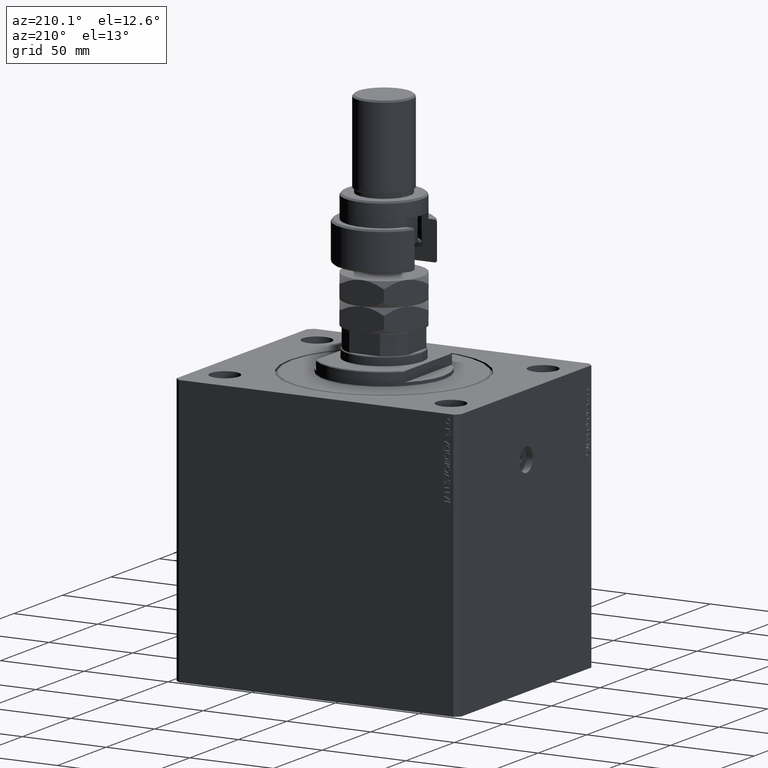
[diagram: clean part render]
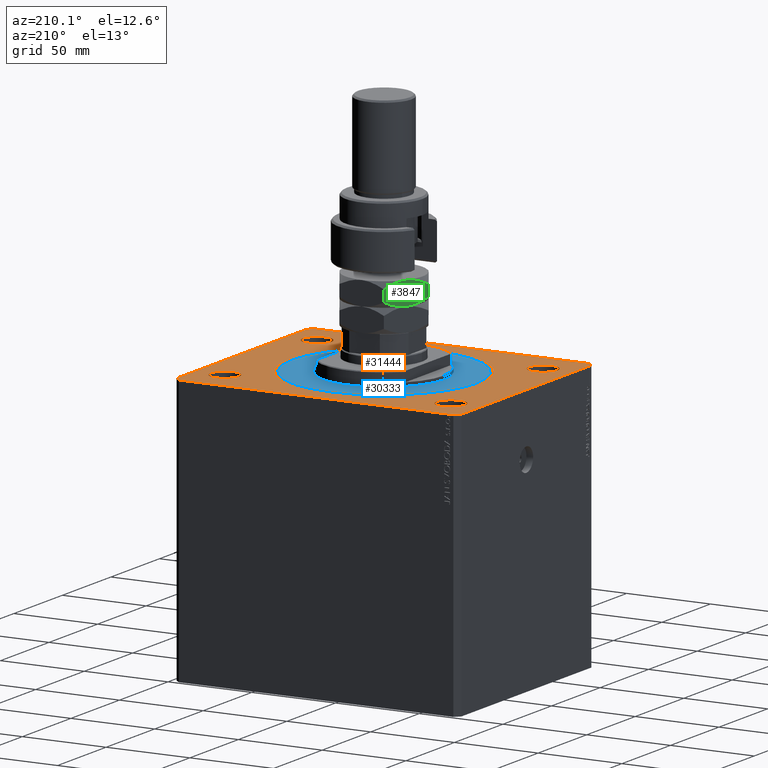
[diagram: same view with three faces highlighted in distinct colors, each labeled with its STEP entity id]
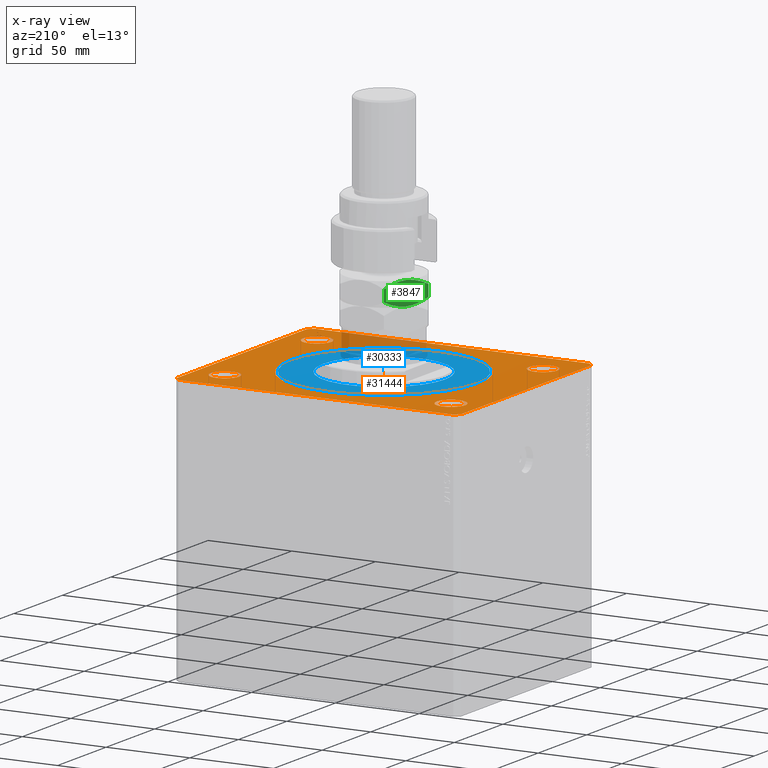
[diagram: x-ray of the same camera — body ghosted, the three highlighted faces saturated]
A machine part, auxiliary view with three faces highlighted in distinct colors.
The next image is the same camera in x-ray (body ghosted, the three faces saturated) — at least one of them is partly hidden behind the body in this view.
Their STEP definitions:

[orange] entity #31444 — the highlighted planar face has unit normal (0, 0, 1).
#66 = CARTESIAN_POINT ( 'NONE',  ( 59.00000000000000000, -47.50000000000001421, 0.000000000000000000 ) ) ;
#152 = VECTOR ( 'NONE', #17586, 1000.000000000000114 ) ;
#232 = DIRECTION ( 'NONE',  ( 0.000000000000000000, 0.000000000000000000, 1.000000000000000000 ) ) ;
#339 = DIRECTION ( 'NONE',  ( 0.7071067811865474617, -0.7071067811865474617, 0.000000000000000000 ) ) ;
#359 = CIRCLE ( 'NONE', #9518, 8.499999999999992895 ) ;
#422 = FACE_OUTER_BOUND ( 'NONE', #38040, .T. ) ;
#856 = DIRECTION ( 'NONE',  ( 1.000000000000000000, 0.000000000000000000, 0.000000000000000000 ) ) ;
#1150 = VERTEX_POINT ( 'NONE', #41663 ) ;
#1504 = CARTESIAN_POINT ( 'NONE',  ( 0.000000000000000000, 0.000000000000000000, 0.000000000000000000 ) ) ;
#1679 = LINE ( 'NONE', #30053, #14135 ) ;
#1809 = DIRECTION ( 'NONE',  ( 1.000000000000000000, 0.000000000000000000, 0.000000000000000000 ) ) ;
#1843 = ORIENTED_EDGE ( 'NONE', *, *, #41476, .T. ) ;
#1967 = DIRECTION ( 'NONE',  ( 0.000000000000000000, 0.000000000000000000, 1.000000000000000000 ) ) ;
#2718 = EDGE_CURVE ( 'NONE', #18835, #39167, #28983, .T. ) ;
#2809 = LINE ( 'NONE', #14094, #33212 ) ;
#2948 = CARTESIAN_POINT ( 'NONE',  ( 82.00000000000001421, -70.00000000000000000, 0.000000000000000000 ) ) ;
#3319 = EDGE_CURVE ( 'NONE', #45254, #24000, #23534, .T. ) ;
#4534 = AXIS2_PLACEMENT_3D ( 'NONE', #29483, #14112, #39810 ) ;
#5463 = CARTESIAN_POINT ( 'NONE',  ( 59.00000000000000000, 47.49999999999999289, 0.000000000000000000 ) ) ;
#5775 = EDGE_LOOP ( 'NONE', ( #29635, #27258 ) ) ;
#5882 = EDGE_CURVE ( 'NONE', #39167, #18835, #23679, .T. ) ;
#6448 = DIRECTION ( 'NONE',  ( -0.7071067811865507924, -0.7071067811865441310, 0.000000000000000000 ) ) ;
#7303 = CARTESIAN_POINT ( 'NONE',  ( 67.50000000000000000, 47.49999999999999289, 0.000000000000000000 ) ) ;
#7456 = EDGE_CURVE ( 'NONE', #21469, #40308, #20679, .T. ) ;
#8411 = EDGE_CURVE ( 'NONE', #33412, #31348, #34493, .T. ) ;
#8479 = DIRECTION ( 'NONE',  ( 1.000000000000000000, 0.000000000000000000, 0.000000000000000000 ) ) ;
#8973 = DIRECTION ( 'NONE',  ( 0.000000000000000000, 0.000000000000000000, 1.000000000000000000 ) ) ;
#9005 = DIRECTION ( 'NONE',  ( 0.000000000000000000, 0.000000000000000000, 1.000000000000000000 ) ) ;
#9354 = EDGE_CURVE ( 'NONE', #44388, #32621, #21507, .T. ) ;
#9518 = AXIS2_PLACEMENT_3D ( 'NONE', #42574, #24789, #39451 ) ;
#9804 = CARTESIAN_POINT ( 'NONE',  ( -82.00000000000000000, 70.00000000000000000, 0.000000000000000000 ) ) ;
#9985 = EDGE_LOOP ( 'NONE', ( #34518, #45412 ) ) ;
#10189 = ORIENTED_EDGE ( 'NONE', *, *, #3319, .T. ) ;
#10327 = ORIENTED_EDGE ( 'NONE', *, *, #43804, .F. ) ;
#10337 = VERTEX_POINT ( 'NONE', #19117 ) ;
#10406 = LINE ( 'NONE', #21455, #34111 ) ;
#10807 = EDGE_LOOP ( 'NONE', ( #23780, #21565 ) ) ;
#10915 = EDGE_CURVE ( 'NONE', #23577, #1150, #16933, .T. ) ;
#11351 = ORIENTED_EDGE ( 'NONE', *, *, #10915, .F. ) ;
#11466 = DIRECTION ( 'NONE',  ( 0.000000000000000000, 0.000000000000000000, 1.000000000000000000 ) ) ;
#11534 = CARTESIAN_POINT ( 'NONE',  ( 85.00000000000001421, -67.00000000000000000, 0.000000000000000000 ) ) ;
#11704 = FACE_BOUND ( 'NONE', #5775, .T. ) ;
#12755 = DIRECTION ( 'NONE',  ( 0.000000000000000000, 0.000000000000000000, 1.000000000000000000 ) ) ;
#13510 = CARTESIAN_POINT ( 'NONE',  ( 85.00000000000052580, 66.99999999999995737, 0.000000000000000000 ) ) ;
#14047 = CARTESIAN_POINT ( 'NONE',  ( 82.00000000000056843, 70.00000000000000000, 0.000000000000000000 ) ) ;
#14094 = CARTESIAN_POINT ( 'NONE',  ( 82.00000000000056843, 70.00000000000000000, 0.000000000000000000 ) ) ;
#14112 = DIRECTION ( 'NONE',  ( 0.000000000000000000, 0.000000000000000000, 1.000000000000000000 ) ) ;
#14135 = VECTOR ( 'NONE', #26433, 1000.000000000000000 ) ;
#14659 = AXIS2_PLACEMENT_3D ( 'NONE', #36975, #232, #32665 ) ;
#14984 = CARTESIAN_POINT ( 'NONE',  ( -85.00000000000000000, -67.00000000000000000, 0.000000000000000000 ) ) ;
#15275 = ORIENTED_EDGE ( 'NONE', *, *, #29829, .F. ) ;
#15419 = ORIENTED_EDGE ( 'NONE', *, *, #38932, .T. ) ;
#15944 = CARTESIAN_POINT ( 'NONE',  ( -76.00000000000000000, 47.50000000000000000, 0.000000000000000000 ) ) ;
#15951 = CARTESIAN_POINT ( 'NONE',  ( 0.000000000000000000, 0.000000000000000000, 0.000000000000000000 ) ) ;
#15999 = FACE_BOUND ( 'NONE', #10807, .T. ) ;
#16118 = DIRECTION ( 'NONE',  ( 1.000000000000000000, 0.000000000000000000, 0.000000000000000000 ) ) ;
#16431 = CARTESIAN_POINT ( 'NONE',  ( -67.50000000000000000, 47.50000000000000000, 0.000000000000000000 ) ) ;
#16933 = CIRCLE ( 'NONE', #14659, 8.500000000000007105 ) ;
#17586 = DIRECTION ( 'NONE',  ( 0.7071067811865474617, 0.7071067811865474617, 0.000000000000000000 ) ) ;
#18835 = VERTEX_POINT ( 'NONE', #66 ) ;
#18884 = EDGE_CURVE ( 'NONE', #38866, #46447, #35839, .T. ) ;
#19117 = CARTESIAN_POINT ( 'NONE',  ( -82.00000000000000000, -70.00000000000000000, 0.000000000000000000 ) ) ;
#19243 = DIRECTION ( 'NONE',  ( -0.7071067811865361374, 0.7071067811865588970, 0.000000000000000000 ) ) ;
#20679 = CIRCLE ( 'NONE', #47539, 8.499999999999992895 ) ;
#20898 = EDGE_LOOP ( 'NONE', ( #10327, #11351 ) ) ;
#21257 = EDGE_CURVE ( 'NONE', #24000, #29445, #2809, .T. ) ;
#21423 = CARTESIAN_POINT ( 'NONE',  ( -59.00000000000001421, 47.50000000000000000, 0.000000000000000000 ) ) ;
#21455 = CARTESIAN_POINT ( 'NONE',  ( -82.00000000000000000, -70.00000000000000000, 0.000000000000000000 ) ) ;
#21469 = VERTEX_POINT ( 'NONE', #21423 ) ;
#21507 = CIRCLE ( 'NONE', #22266, 56.50000000000000711 ) ;
#21565 = ORIENTED_EDGE ( 'NONE', *, *, #8411, .F. ) ;
#21764 = ORIENTED_EDGE ( 'NONE', *, *, #9354, .F. ) ;
#21945 = DIRECTION ( 'NONE',  ( 0.000000000000000000, 0.000000000000000000, 1.000000000000000000 ) ) ;
#21959 = AXIS2_PLACEMENT_3D ( 'NONE', #15951, #8973, #23616 ) ;
#22232 = AXIS2_PLACEMENT_3D ( 'NONE', #43443, #30160, #856 ) ;
#22266 = AXIS2_PLACEMENT_3D ( 'NONE', #1504, #1967, #8479 ) ;
#23329 = ORIENTED_EDGE ( 'NONE', *, *, #21257, .T. ) ;
#23391 = DIRECTION ( 'NONE',  ( 1.000000000000000000, 0.000000000000000000, 0.000000000000000000 ) ) ;
#23534 = LINE ( 'NONE', #38190, #28950 ) ;
#23558 = AXIS2_PLACEMENT_3D ( 'NONE', #31245, #12755, #16118 ) ;
#23577 = VERTEX_POINT ( 'NONE', #5463 ) ;
#23593 = VECTOR ( 'NONE', #6448, 1000.000000000000114 ) ;
#23616 = DIRECTION ( 'NONE',  ( 1.000000000000000000, 0.000000000000000000, 0.000000000000000000 ) ) ;
#23647 = CARTESIAN_POINT ( 'NONE',  ( 67.49999999999998579, -47.50000000000001421, 0.000000000000000000 ) ) ;
#23679 = CIRCLE ( 'NONE', #4534, 8.499999999999992895 ) ;
#23780 = ORIENTED_EDGE ( 'NONE', *, *, #39845, .F. ) ;
#24000 = VERTEX_POINT ( 'NONE', #14047 ) ;
#24321 = EDGE_CURVE ( 'NONE', #40308, #21469, #359, .T. ) ;
#24735 = CARTESIAN_POINT ( 'NONE',  ( -85.00000000000000000, -67.00000000000000000, 0.000000000000000000 ) ) ;
#24789 = DIRECTION ( 'NONE',  ( 0.000000000000000000, 0.000000000000000000, 1.000000000000000000 ) ) ;
#26268 = LINE ( 'NONE', #14984, #39793 ) ;
#26345 = FACE_BOUND ( 'NONE', #20898, .T. ) ;
#26433 = DIRECTION ( 'NONE',  ( 1.035655806553317576E-16, -1.000000000000000000, 0.000000000000000000 ) ) ;
#27258 = ORIENTED_EDGE ( 'NONE', *, *, #2718, .F. ) ;
#27667 = ORIENTED_EDGE ( 'NONE', *, *, #43785, .T. ) ;
#28280 = CARTESIAN_POINT ( 'NONE',  ( 85.00000000000001421, -67.00000000000000000, 0.000000000000000000 ) ) ;
#28783 = LINE ( 'NONE', #9804, #23593 ) ;
#28950 = VECTOR ( 'NONE', #19243, 1000.000000000000114 ) ;
#28983 = CIRCLE ( 'NONE', #45061, 8.499999999999992895 ) ;
#29215 = ORIENTED_EDGE ( 'NONE', *, *, #18884, .T. ) ;
#29445 = VERTEX_POINT ( 'NONE', #40548 ) ;
#29483 = CARTESIAN_POINT ( 'NONE',  ( 67.49999999999998579, -47.50000000000001421, 0.000000000000000000 ) ) ;
#29635 = ORIENTED_EDGE ( 'NONE', *, *, #5882, .F. ) ;
#29829 = EDGE_CURVE ( 'NONE', #32621, #44388, #33484, .T. ) ;
#29960 = FACE_BOUND ( 'NONE', #43032, .T. ) ;
#30053 = CARTESIAN_POINT ( 'NONE',  ( -85.00000000000001421, 67.00000000000001421, 0.000000000000000000 ) ) ;
#30160 = DIRECTION ( 'NONE',  ( 0.000000000000000000, 0.000000000000000000, 1.000000000000000000 ) ) ;
#31013 = EDGE_CURVE ( 'NONE', #10337, #38866, #10406, .T. ) ;
#31245 = CARTESIAN_POINT ( 'NONE',  ( -67.49999999999998579, -47.50000000000001421, 0.000000000000000000 ) ) ;
#31348 = VERTEX_POINT ( 'NONE', #47022 ) ;
#31357 = CARTESIAN_POINT ( 'NONE',  ( 75.99999999999998579, -47.50000000000001421, 0.000000000000000000 ) ) ;
#31370 = CARTESIAN_POINT ( 'NONE',  ( -56.50000000000000711, 6.919254415182546126E-15, 0.000000000000000000 ) ) ;
#31444 = ADVANCED_FACE ( 'NONE', ( #29960, #15999, #11704, #26345, #37390, #422 ), #33784, .T. ) ;
#32621 = VERTEX_POINT ( 'NONE', #31370 ) ;
#32665 = DIRECTION ( 'NONE',  ( 1.000000000000000000, 0.000000000000000000, 0.000000000000000000 ) ) ;
#32774 = VECTOR ( 'NONE', #42930, 1000.000000000000000 ) ;
#32956 = CARTESIAN_POINT ( 'NONE',  ( 56.50000000000000711, 0.000000000000000000, 0.000000000000000000 ) ) ;
#33212 = VECTOR ( 'NONE', #43392, 1000.000000000000000 ) ;
#33412 = VERTEX_POINT ( 'NONE', #33967 ) ;
#33484 = CIRCLE ( 'NONE', #21959, 56.50000000000000711 ) ;
#33784 = PLANE ( 'NONE',  #37177 ) ;
#33967 = CARTESIAN_POINT ( 'NONE',  ( -75.99999999999998579, -47.50000000000001421, 0.000000000000000000 ) ) ;
#34037 = EDGE_CURVE ( 'NONE', #35505, #39889, #1679, .T. ) ;
#34111 = VECTOR ( 'NONE', #36098, 1000.000000000000000 ) ;
#34493 = CIRCLE ( 'NONE', #22232, 8.499999999999992895 ) ;
#34518 = ORIENTED_EDGE ( 'NONE', *, *, #7456, .F. ) ;
#35505 = VERTEX_POINT ( 'NONE', #40994 ) ;
#35839 = LINE ( 'NONE', #2948, #152 ) ;
#36098 = DIRECTION ( 'NONE',  ( 1.000000000000000000, 0.000000000000000000, 0.000000000000000000 ) ) ;
#36595 = DIRECTION ( 'NONE',  ( 1.000000000000000000, 0.000000000000000000, 0.000000000000000000 ) ) ;
#36942 = ORIENTED_EDGE ( 'NONE', *, *, #31013, .T. ) ;
#36975 = CARTESIAN_POINT ( 'NONE',  ( 67.50000000000000000, 47.49999999999999289, 0.000000000000000000 ) ) ;
#37177 = AXIS2_PLACEMENT_3D ( 'NONE', #44374, #11466, #44836 ) ;
#37390 = FACE_BOUND ( 'NONE', #9985, .T. ) ;
#37498 = LINE ( 'NONE', #28280, #32774 ) ;
#38040 = EDGE_LOOP ( 'NONE', ( #23329, #1843, #42850, #27667, #36942, #29215, #15419, #10189 ) ) ;
#38042 = DIRECTION ( 'NONE',  ( 0.000000000000000000, 0.000000000000000000, 1.000000000000000000 ) ) ;
#38190 = CARTESIAN_POINT ( 'NONE',  ( 85.00000000000052580, 66.99999999999995737, 0.000000000000000000 ) ) ;
#38272 = CIRCLE ( 'NONE', #45927, 8.500000000000007105 ) ;
#38866 = VERTEX_POINT ( 'NONE', #44488 ) ;
#38932 = EDGE_CURVE ( 'NONE', #46447, #45254, #37498, .T. ) ;
#39167 = VERTEX_POINT ( 'NONE', #31357 ) ;
#39451 = DIRECTION ( 'NONE',  ( 1.000000000000000000, 0.000000000000000000, 0.000000000000000000 ) ) ;
#39695 = CIRCLE ( 'NONE', #23558, 8.499999999999992895 ) ;
#39793 = VECTOR ( 'NONE', #339, 1000.000000000000114 ) ;
#39810 = DIRECTION ( 'NONE',  ( 1.000000000000000000, 0.000000000000000000, 0.000000000000000000 ) ) ;
#39845 = EDGE_CURVE ( 'NONE', #31348, #33412, #39695, .T. ) ;
#39889 = VERTEX_POINT ( 'NONE', #24735 ) ;
#40308 = VERTEX_POINT ( 'NONE', #15944 ) ;
#40548 = CARTESIAN_POINT ( 'NONE',  ( -82.00000000000000000, 70.00000000000000000, 0.000000000000000000 ) ) ;
#40994 = CARTESIAN_POINT ( 'NONE',  ( -85.00000000000001421, 67.00000000000001421, 0.000000000000000000 ) ) ;
#41476 = EDGE_CURVE ( 'NONE', #29445, #35505, #28783, .T. ) ;
#41663 = CARTESIAN_POINT ( 'NONE',  ( 76.00000000000001421, 47.49999999999999289, 0.000000000000000000 ) ) ;
#42574 = CARTESIAN_POINT ( 'NONE',  ( -67.50000000000000000, 47.50000000000000000, 0.000000000000000000 ) ) ;
#42850 = ORIENTED_EDGE ( 'NONE', *, *, #34037, .T. ) ;
#42930 = DIRECTION ( 'NONE',  ( 3.728360903591945148E-15, 1.000000000000000000, 0.000000000000000000 ) ) ;
#43032 = EDGE_LOOP ( 'NONE', ( #21764, #15275 ) ) ;
#43392 = DIRECTION ( 'NONE',  ( -1.000000000000000000, 0.000000000000000000, 0.000000000000000000 ) ) ;
#43443 = CARTESIAN_POINT ( 'NONE',  ( -67.49999999999998579, -47.50000000000001421, 0.000000000000000000 ) ) ;
#43785 = EDGE_CURVE ( 'NONE', #39889, #10337, #26268, .T. ) ;
#43804 = EDGE_CURVE ( 'NONE', #1150, #23577, #38272, .T. ) ;
#44374 = CARTESIAN_POINT ( 'NONE',  ( 0.000000000000000000, 0.000000000000000000, 0.000000000000000000 ) ) ;
#44388 = VERTEX_POINT ( 'NONE', #32956 ) ;
#44488 = CARTESIAN_POINT ( 'NONE',  ( 82.00000000000001421, -70.00000000000000000, 0.000000000000000000 ) ) ;
#44836 = DIRECTION ( 'NONE',  ( 1.000000000000000000, 0.000000000000000000, -0.000000000000000000 ) ) ;
#45061 = AXIS2_PLACEMENT_3D ( 'NONE', #23647, #9005, #1809 ) ;
#45254 = VERTEX_POINT ( 'NONE', #13510 ) ;
#45412 = ORIENTED_EDGE ( 'NONE', *, *, #24321, .F. ) ;
#45927 = AXIS2_PLACEMENT_3D ( 'NONE', #7303, #21945, #36595 ) ;
#46447 = VERTEX_POINT ( 'NONE', #11534 ) ;
#47022 = CARTESIAN_POINT ( 'NONE',  ( -59.00000000000000000, -47.50000000000001421, 0.000000000000000000 ) ) ;
#47539 = AXIS2_PLACEMENT_3D ( 'NONE', #16431, #38042, #23391 ) ;

[blue] entity #30333 — the highlighted planar face has unit normal (0, 0, -1).
#1983 = CARTESIAN_POINT ( 'NONE',  ( -55.00000000000002132, 6.827405905246496343E-15, 0.000000000000000000 ) ) ;
#4105 = EDGE_LOOP ( 'NONE', ( #47425, #43416 ) ) ;
#5447 = CARTESIAN_POINT ( 'NONE',  ( 36.50000000000000000, 0.000000000000000000, -2.168404344971008868E-16 ) ) ;
#6978 = FACE_BOUND ( 'NONE', #24445, .T. ) ;
#9736 = DIRECTION ( 'NONE',  ( 1.000000000000000000, 0.000000000000000000, 0.000000000000000000 ) ) ;
#10029 = CARTESIAN_POINT ( 'NONE',  ( 0.000000000000000000, 0.000000000000000000, 0.000000000000000000 ) ) ;
#10822 = CARTESIAN_POINT ( 'NONE',  ( 0.000000000000000000, 0.000000000000000000, 0.000000000000000000 ) ) ;
#13259 = EDGE_CURVE ( 'NONE', #46856, #21154, #20062, .T. ) ;
#13346 = DIRECTION ( 'NONE',  ( -0.000000000000000000, -0.000000000000000000, -1.000000000000000000 ) ) ;
#13486 = VERTEX_POINT ( 'NONE', #1983 ) ;
#13529 = AXIS2_PLACEMENT_3D ( 'NONE', #10029, #17235, #31895 ) ;
#13955 = AXIS2_PLACEMENT_3D ( 'NONE', #41396, #15702, #37790 ) ;
#14190 = DIRECTION ( 'NONE',  ( 0.000000000000000000, 0.000000000000000000, 1.000000000000000000 ) ) ;
#14344 = VERTEX_POINT ( 'NONE', #17411 ) ;
#14432 = DIRECTION ( 'NONE',  ( 1.000000000000000000, 0.000000000000000000, -0.000000000000000000 ) ) ;
#15702 = DIRECTION ( 'NONE',  ( 0.000000000000000000, 0.000000000000000000, 1.000000000000000000 ) ) ;
#17235 = DIRECTION ( 'NONE',  ( -0.000000000000000000, -0.000000000000000000, -1.000000000000000000 ) ) ;
#17411 = CARTESIAN_POINT ( 'NONE',  ( 55.00000000000002132, 0.000000000000000000, 0.000000000000000000 ) ) ;
#18593 = EDGE_CURVE ( 'NONE', #21154, #46856, #27764, .T. ) ;
#20062 = CIRCLE ( 'NONE', #40788, 36.50000000000000000 ) ;
#21154 = VERTEX_POINT ( 'NONE', #38112 ) ;
#24445 = EDGE_LOOP ( 'NONE', ( #47183, #26638 ) ) ;
#25469 = FACE_OUTER_BOUND ( 'NONE', #4105, .T. ) ;
#26638 = ORIENTED_EDGE ( 'NONE', *, *, #18593, .T. ) ;
#27764 = CIRCLE ( 'NONE', #13955, 36.50000000000000000 ) ;
#28854 = EDGE_CURVE ( 'NONE', #13486, #14344, #35834, .T. ) ;
#28987 = DIRECTION ( 'NONE',  ( 0.000000000000000000, 0.000000000000000000, 1.000000000000000000 ) ) ;
#29232 = DIRECTION ( 'NONE',  ( 1.000000000000000000, 0.000000000000000000, 0.000000000000000000 ) ) ;
#29321 = PLANE ( 'NONE',  #34970 ) ;
#29667 = CIRCLE ( 'NONE', #13529, 55.00000000000002132 ) ;
#30333 = ADVANCED_FACE ( 'NONE', ( #6978, #25469 ), #29321, .F. ) ;
#31608 = CARTESIAN_POINT ( 'NONE',  ( 0.000000000000000000, 0.000000000000000000, 0.000000000000000000 ) ) ;
#31895 = DIRECTION ( 'NONE',  ( 1.000000000000000000, 0.000000000000000000, 0.000000000000000000 ) ) ;
#34970 = AXIS2_PLACEMENT_3D ( 'NONE', #10822, #14190, #14432 ) ;
#35834 = CIRCLE ( 'NONE', #41229, 55.00000000000002132 ) ;
#36281 = EDGE_CURVE ( 'NONE', #14344, #13486, #29667, .T. ) ;
#37790 = DIRECTION ( 'NONE',  ( 1.000000000000000000, 0.000000000000000000, 0.000000000000000000 ) ) ;
#38112 = CARTESIAN_POINT ( 'NONE',  ( -36.50000000000000000, 4.469960816887838430E-15, -2.168404344971008868E-16 ) ) ;
#40788 = AXIS2_PLACEMENT_3D ( 'NONE', #43397, #28987, #29232 ) ;
#41229 = AXIS2_PLACEMENT_3D ( 'NONE', #31608, #13346, #9736 ) ;
#41396 = CARTESIAN_POINT ( 'NONE',  ( 0.000000000000000000, 0.000000000000000000, 0.000000000000000000 ) ) ;
#43397 = CARTESIAN_POINT ( 'NONE',  ( 0.000000000000000000, 0.000000000000000000, 0.000000000000000000 ) ) ;
#43416 = ORIENTED_EDGE ( 'NONE', *, *, #28854, .T. ) ;
#46856 = VERTEX_POINT ( 'NONE', #5447 ) ;
#47183 = ORIENTED_EDGE ( 'NONE', *, *, #13259, .T. ) ;
#47425 = ORIENTED_EDGE ( 'NONE', *, *, #36281, .T. ) ;

[green] entity #3847 — the highlighted planar face has unit normal (0.866, -0.5, 0).
#8 = CARTESIAN_POINT ( 'NONE',  ( -23.00000000000000355, 11.19584287463890959, 16.56112058300224632 ) ) ;
#548 = B_SPLINE_CURVE_WITH_KNOTS ( 'NONE', 3,
 ( #38722, #4881, #1753, #1278, #5114, #19767, #15927, #34416, #1513, #16161 ),
 .UNSPECIFIED., .F., .F.,
 ( 4, 2, 2, 2, 4 ),
 ( 0.03391842154671734916, 0.03738166515001972723, 0.03911328695167091973, 0.04084490875332210530, 0.04777139595992686838 ),
 .UNSPECIFIED. ) ;
#812 = B_SPLINE_CURVE_WITH_KNOTS ( 'NONE', 3,
 ( #7941, #22592, #34565, #16783, #9578, #42244, #30740, #23744, #27131, #12481 ),
 .UNSPECIFIED., .F., .F.,
 ( 4, 2, 2, 2, 4 ),
 ( 0.03391842154671734916, 0.03738166515001972723, 0.03911328695167091973, 0.04084490875332210530, 0.04777139595992687532 ),
 .UNSPECIFIED. ) ;
#1278 = CARTESIAN_POINT ( 'NONE',  ( -22.99999999999999289, 9.585014738077486385, 26.08755915768734468 ) ) ;
#1513 = CARTESIAN_POINT ( 'NONE',  ( -23.00000000000000711, 2.332866569036887938, 27.99999999999999645 ) ) ;
#1697 = VERTEX_POINT ( 'NONE', #34746 ) ;
#1753 = CARTESIAN_POINT ( 'NONE',  ( -22.99999999999999645, 11.20010744839417427, 25.43691701641144221 ) ) ;
#2890 = CARTESIAN_POINT ( 'NONE',  ( -23.00000000000000000, 13.27905619136138959, 17.55811238272277564 ) ) ;
#3314 = VERTEX_POINT ( 'NONE', #26678 ) ;
#3847 = ADVANCED_FACE ( 'NONE', ( #26836 ), #42428, .F. ) ;
#4328 = CARTESIAN_POINT ( 'NONE',  ( -23.00000000000000000, -5.732845801352522308, 27.32003707801577619 ) ) ;
#4757 = DIRECTION ( 'NONE',  ( -0.000000000000000000, -0.000000000000000000, -1.000000000000000000 ) ) ;
#4881 = CARTESIAN_POINT ( 'NONE',  ( -23.00000000000000000, 12.24963129209447565, 24.95660006691067778 ) ) ;
#5114 = CARTESIAN_POINT ( 'NONE',  ( -23.00000000000000000, 9.038140464506012606, 26.29329459371818345 ) ) ;
#5548 = CARTESIAN_POINT ( 'NONE',  ( -23.00000000000000000, 13.27905619136138959, 28.00000000000000000 ) ) ;
#5794 = VERTEX_POINT ( 'NONE', #33835 ) ;
#6142 = VERTEX_POINT ( 'NONE', #36394 ) ;
#6490 = CARTESIAN_POINT ( 'NONE',  ( -23.00000000000001066, 0.5819124658698887620, 14.00000000000000711 ) ) ;
#6867 = ORIENTED_EDGE ( 'NONE', *, *, #16245, .F. ) ;
#7215 = CARTESIAN_POINT ( 'NONE',  ( -23.00000000000000000, 1.168850493887471087, 14.02243711562833184 ) ) ;
#7941 = CARTESIAN_POINT ( 'NONE',  ( -23.00000000000000000, -13.27905619136138959, 17.55811238272277564 ) ) ;
#8310 = AXIS2_PLACEMENT_3D ( 'NONE', #23691, #45331, #16024 ) ;
#9578 = CARTESIAN_POINT ( 'NONE',  ( -23.00000000000000355, -9.038140464506014382, 15.70670540628181477 ) ) ;
#9753 = VERTEX_POINT ( 'NONE', #41793 ) ;
#11195 = B_SPLINE_CURVE_WITH_KNOTS ( 'NONE', 3,
 ( #14672, #22361, #18516, #43977, #11550, #12011, #4328, #26189, #25956, #41073, #40378, #36765 ),
 .UNSPECIFIED., .F., .F.,
 ( 4, 2, 2, 2, 2, 4 ),
 ( 0.04777139595992686838, 0.04949914554651193427, 0.05122689513309699322, 0.05468239430626712499, 0.05813789347943724983, 0.06159339265260738161 ),
 .UNSPECIFIED. ) ;
#11550 = CARTESIAN_POINT ( 'NONE',  ( -23.00000000000000000, -2.901718448039539044, 27.82452852895291429 ) ) ;
#12011 = CARTESIAN_POINT ( 'NONE',  ( -23.00000000000000355, -4.611258391204997586, 27.56938464817973511 ) ) ;
#12481 = CARTESIAN_POINT ( 'NONE',  ( -22.99999999999999645, 3.004629197474316090E-15, 14.00000000000000000 ) ) ;
#14353 = VECTOR ( 'NONE', #4757, 1000.000000000000000 ) ;
#14672 = CARTESIAN_POINT ( 'NONE',  ( -22.99999999999999645, 0.000000000000000000, 28.00000000000000000 ) ) ;
#15330 = EDGE_CURVE ( 'NONE', #5794, #3314, #11195, .T. ) ;
#15927 = CARTESIAN_POINT ( 'NONE',  ( -22.99999999999999645, 7.384104261058114460, 26.84961951312581618 ) ) ;
#16024 = DIRECTION ( 'NONE',  ( -0.000000000000000000, 0.000000000000000000, -1.000000000000000000 ) ) ;
#16161 = CARTESIAN_POINT ( 'NONE',  ( -22.99999999999999645, 0.000000000000000000, 28.00000000000000000 ) ) ;
#16245 = EDGE_CURVE ( 'NONE', #29967, #9753, #812, .T. ) ;
#16783 = CARTESIAN_POINT ( 'NONE',  ( -22.99999999999999289, -9.585014738077491714, 15.91244084231266420 ) ) ;
#17781 = CARTESIAN_POINT ( 'NONE',  ( -22.99999999999999645, 3.004629197474316090E-15, 14.00000000000000000 ) ) ;
#18516 = CARTESIAN_POINT ( 'NONE',  ( -23.00000000000000000, -1.168850493887465758, 27.97756288437166461 ) ) ;
#19401 = VECTOR ( 'NONE', #20195, 1000.000000000000000 ) ;
#19630 = CARTESIAN_POINT ( 'NONE',  ( -23.00000000000000000, -13.27905619136138959, 28.00000000000000000 ) ) ;
#19767 = CARTESIAN_POINT ( 'NONE',  ( -23.00000000000000000, 7.937214062685161942, 26.67444397236640086 ) ) ;
#20195 = DIRECTION ( 'NONE',  ( -0.000000000000000000, -0.000000000000000000, -1.000000000000000000 ) ) ;
#21862 = CARTESIAN_POINT ( 'NONE',  ( -23.00000000000000355, 4.611258391204995810, 14.43061535182026667 ) ) ;
#22361 = CARTESIAN_POINT ( 'NONE',  ( -23.00000000000000711, -0.5819124658698872077, 28.00000000000000000 ) ) ;
#22491 = ORIENTED_EDGE ( 'NONE', *, *, #31920, .T. ) ;
#22592 = CARTESIAN_POINT ( 'NONE',  ( -22.99999999999999289, -12.24963129209448276, 17.04339993308932222 ) ) ;
#23228 = LINE ( 'NONE', #19630, #14353 ) ;
#23691 = CARTESIAN_POINT ( 'NONE',  ( -23.00000000000000000, 13.27905619136138959, 28.00000000000000000 ) ) ;
#23744 = CARTESIAN_POINT ( 'NONE',  ( -23.00000000000000355, -4.604003285773385024, 14.35917286671931059 ) ) ;
#24065 = EDGE_LOOP ( 'NONE', ( #6867, #44038, #27603, #46709, #22491, #46917 ) ) ;
#25956 = CARTESIAN_POINT ( 'NONE',  ( -23.00000000000000355, -9.037287856520077156, 26.30796566528420399 ) ) ;
#26189 = CARTESIAN_POINT ( 'NONE',  ( -22.99999999999999645, -7.945847288453418145, 26.68926960916466129 ) ) ;
#26678 = CARTESIAN_POINT ( 'NONE',  ( -23.00000000000000000, -13.27905619136138959, 24.44188761727722436 ) ) ;
#26764 = B_SPLINE_CURVE_WITH_KNOTS ( 'NONE', 3,
 ( #17781, #6490, #7215, #28828, #31954, #21862, #32197, #29312, #43478, #8, #43722, #2890 ),
 .UNSPECIFIED., .F., .F.,
 ( 4, 2, 2, 2, 2, 4 ),
 ( 0.04777139595992687532, 0.04949914554651194121, 0.05122689513309700016, 0.05468239430626712499, 0.05813789347943724983, 0.06159339265260737467 ),
 .UNSPECIFIED. ) ;
#26836 = FACE_OUTER_BOUND ( 'NONE', #24065, .T. ) ;
#27131 = CARTESIAN_POINT ( 'NONE',  ( -23.00000000000000355, -2.332866569036886606, 14.00000000000000355 ) ) ;
#27603 = ORIENTED_EDGE ( 'NONE', *, *, #15330, .F. ) ;
#27940 = CARTESIAN_POINT ( 'NONE',  ( -23.00000000000000000, -13.27905619136138959, 17.55811238272277564 ) ) ;
#28110 = EDGE_CURVE ( 'NONE', #3314, #29967, #23228, .T. ) ;
#28828 = CARTESIAN_POINT ( 'NONE',  ( -23.00000000000000000, 2.327345773459499334, 14.11023447772089945 ) ) ;
#29312 = CARTESIAN_POINT ( 'NONE',  ( -23.00000000000000355, 7.945847288453419921, 15.31073039083534226 ) ) ;
#29967 = VERTEX_POINT ( 'NONE', #27940 ) ;
#30740 = CARTESIAN_POINT ( 'NONE',  ( -23.00000000000000711, -7.384104261058126895, 15.15038048687418559 ) ) ;
#31920 = EDGE_CURVE ( 'NONE', #6142, #1697, #35553, .T. ) ;
#31954 = CARTESIAN_POINT ( 'NONE',  ( -23.00000000000000355, 2.901718448039537712, 14.17547147104708571 ) ) ;
#32197 = CARTESIAN_POINT ( 'NONE',  ( -23.00000000000000711, 5.732845801352522308, 14.67996292198422736 ) ) ;
#33835 = CARTESIAN_POINT ( 'NONE',  ( -22.99999999999999645, 0.000000000000000000, 28.00000000000000000 ) ) ;
#34416 = CARTESIAN_POINT ( 'NONE',  ( -23.00000000000000711, 4.604003285773378806, 27.64082713328069119 ) ) ;
#34514 = EDGE_CURVE ( 'NONE', #6142, #5794, #548, .T. ) ;
#34565 = CARTESIAN_POINT ( 'NONE',  ( -23.00000000000000000, -11.20010744839417782, 16.56308298358856135 ) ) ;
#34746 = CARTESIAN_POINT ( 'NONE',  ( -23.00000000000000000, 13.27905619136138959, 17.55811238272277564 ) ) ;
#35553 = LINE ( 'NONE', #5548, #19401 ) ;
#36394 = CARTESIAN_POINT ( 'NONE',  ( -23.00000000000000000, 13.27905619136138959, 24.44188761727722792 ) ) ;
#36765 = CARTESIAN_POINT ( 'NONE',  ( -23.00000000000000000, -13.27905619136138959, 24.44188761727722436 ) ) ;
#38722 = CARTESIAN_POINT ( 'NONE',  ( -23.00000000000000000, 13.27905619136138959, 24.44188761727722792 ) ) ;
#39902 = EDGE_CURVE ( 'NONE', #9753, #1697, #26764, .T. ) ;
#40378 = CARTESIAN_POINT ( 'NONE',  ( -23.00000000000000711, -12.24912306375522242, 24.95685418108031328 ) ) ;
#41073 = CARTESIAN_POINT ( 'NONE',  ( -23.00000000000000355, -11.19584287463890782, 25.43887941699775368 ) ) ;
#41793 = CARTESIAN_POINT ( 'NONE',  ( -22.99999999999999645, 3.004629197474316090E-15, 14.00000000000000000 ) ) ;
#42244 = CARTESIAN_POINT ( 'NONE',  ( -23.00000000000001066, -7.937214062685167271, 15.32555602763360092 ) ) ;
#42428 = PLANE ( 'NONE',  #8310 ) ;
#43478 = CARTESIAN_POINT ( 'NONE',  ( -23.00000000000000355, 9.037287856520078932, 15.69203433471579778 ) ) ;
#43722 = CARTESIAN_POINT ( 'NONE',  ( -23.00000000000000711, 12.24912306375521531, 17.04314581891969382 ) ) ;
#43977 = CARTESIAN_POINT ( 'NONE',  ( -22.99999999999999289, -2.327345773459494005, 27.88976552227909878 ) ) ;
#44038 = ORIENTED_EDGE ( 'NONE', *, *, #28110, .F. ) ;
#45331 = DIRECTION ( 'NONE',  ( 1.000000000000000000, 0.000000000000000000, -0.000000000000000000 ) ) ;
#46709 = ORIENTED_EDGE ( 'NONE', *, *, #34514, .F. ) ;
#46917 = ORIENTED_EDGE ( 'NONE', *, *, #39902, .F. ) ;